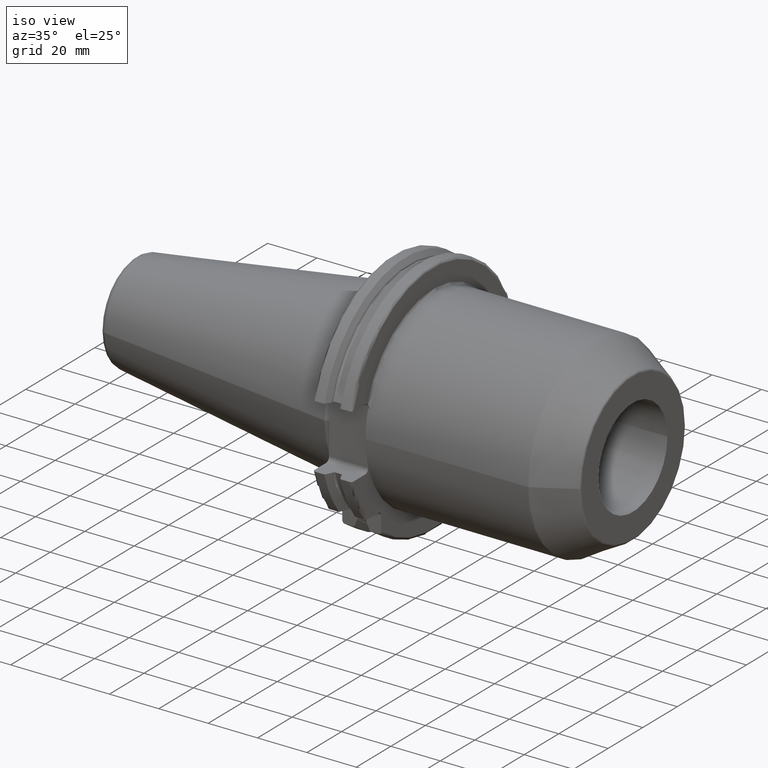
[diagram: clean part render]
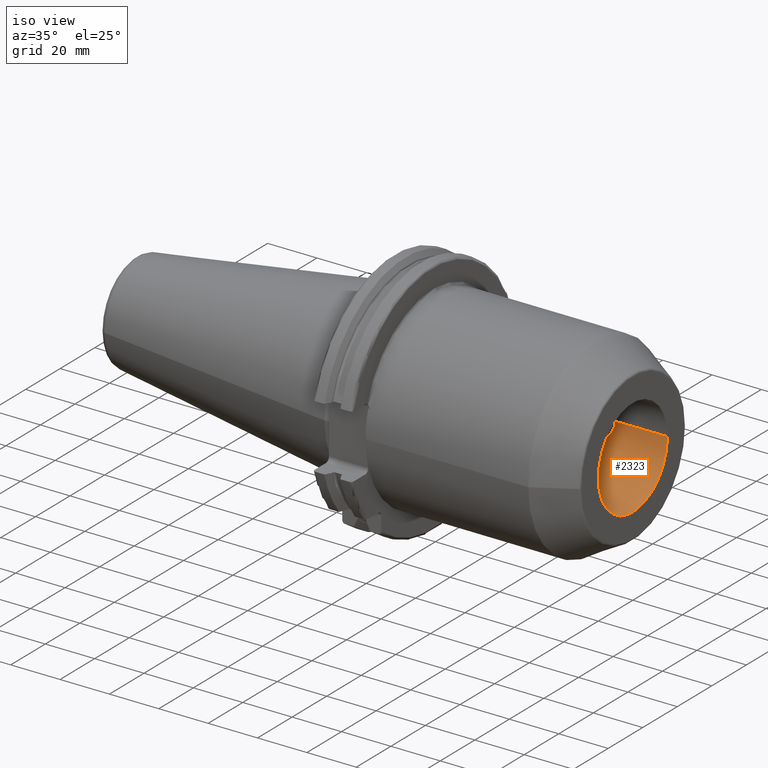
[diagram: same view with one face highlighted and labeled with its STEP entity id]
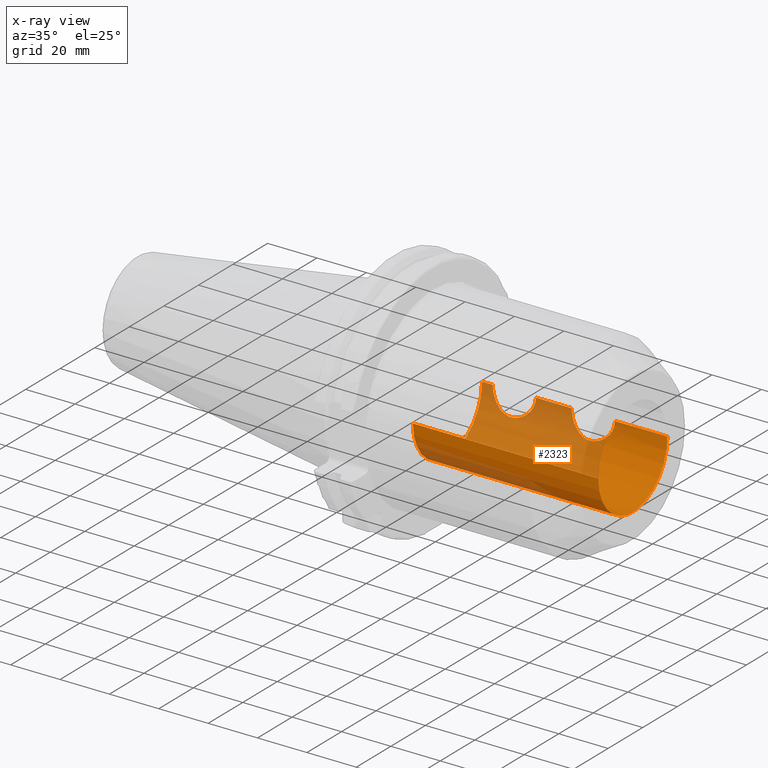
[diagram: x-ray of the same camera — body ghosted, the highlighted face saturated]
A machine part, iso view. The second image highlights one B-rep face of the part: STEP entity #2323.
The next image is the same camera in x-ray: the body ghosted, the highlighted face saturated — about 46% of this face is hidden behind the body in this view.
In plain terms, the highlighted cylindrical surface (partial cylindrical patch) has radius 20 mm, axis along (1, 0, 0).
Its self-contained STEP definition (entity closure, byte-faithful):
#427=CARTESIAN_POINT('',(4.675E1,2.E1,0.E0));
#428=CARTESIAN_POINT('',(4.675E1,2.E1,-4.221815113219E-1));
#429=CARTESIAN_POINT('',(4.668974183808E1,1.997351597905E1,-1.264486825020E0));
#430=CARTESIAN_POINT('',(4.640911381883E1,1.985231393078E1,-2.532693727761E0));
#431=CARTESIAN_POINT('',(4.594098856355E1,1.965730539747E1,-3.752676873421E0));
#432=CARTESIAN_POINT('',(4.528152256770E1,1.939843806638E1,-4.913486967238E0));
#433=CARTESIAN_POINT('',(4.444294002055E1,1.909700523776E1,-5.972419817415E0));
#434=CARTESIAN_POINT('',(4.343749169343E1,1.877919774564E1,-6.899918930217E0));
#435=CARTESIAN_POINT('',(4.232271641238E1,1.848498705845E1,-7.646641068781E0));
#436=CARTESIAN_POINT('',(4.111934025252E1,1.823964579023E1,-8.209758751887E0));
#437=CARTESIAN_POINT('',(3.988771361233E1,1.806891095861E1,-8.575678024833E0));
#438=CARTESIAN_POINT('',(3.862601045370E1,1.798058242086E1,-8.757849501625E0));
#439=CARTESIAN_POINT('',(3.737297962034E1,1.798062249821E1,-8.757766850337E0));
#440=CARTESIAN_POINT('',(3.611145616374E1,1.806899590367E1,-8.575502918762E0));
#441=CARTESIAN_POINT('',(3.487964104451E1,1.823982303661E1,-8.209362893314E0));
#442=CARTESIAN_POINT('',(3.367655713701E1,1.848515425521E1,-7.646254168984E0));
#443=CARTESIAN_POINT('',(3.256139116928E1,1.877952626427E1,-6.899010257766E0));
#444=CARTESIAN_POINT('',(3.155675890303E1,1.909710980604E1,-5.972105203108E0));
#445=CARTESIAN_POINT('',(3.071755755378E1,1.939878030636E1,-4.912159375568E0));
#446=CARTESIAN_POINT('',(3.005868455095E1,1.965744277999E1,-3.751921524590E0));
#447=CARTESIAN_POINT('',(2.959064177600E1,1.985241725797E1,-2.531818652776E0));
#448=CARTESIAN_POINT('',(2.931031023148E1,1.997349416097E1,-1.264585744122E0));
#449=CARTESIAN_POINT('',(2.925E1,2.E1,-4.222505022422E-1));
#450=CARTESIAN_POINT('',(2.925E1,2.E1,0.E0));
#452=DIRECTION('',(-1.E0,0.E0,0.E0));
#453=VECTOR('',#452,1.45E1);
#454=CARTESIAN_POINT('',(6.125E1,2.E1,0.E0));
#455=LINE('',#454,#453);
#456=CARTESIAN_POINT('',(7.875E1,2.E1,0.E0));
#457=CARTESIAN_POINT('',(7.875E1,2.E1,-4.221815113219E-1));
#458=CARTESIAN_POINT('',(7.868974183808E1,1.997351597905E1,-1.264486825020E0));
#459=CARTESIAN_POINT('',(7.840911381883E1,1.985231393078E1,-2.532693727761E0));
#460=CARTESIAN_POINT('',(7.794098856355E1,1.965730539747E1,-3.752676873421E0));
#461=CARTESIAN_POINT('',(7.728152256770E1,1.939843806638E1,-4.913486967238E0));
#462=CARTESIAN_POINT('',(7.644294002055E1,1.909700523776E1,-5.972419817415E0));
#463=CARTESIAN_POINT('',(7.543749169343E1,1.877919774564E1,-6.899918930217E0));
#464=CARTESIAN_POINT('',(7.432271641238E1,1.848498705845E1,-7.646641068781E0));
#465=CARTESIAN_POINT('',(7.311934025252E1,1.823964579023E1,-8.209758751887E0));
#466=CARTESIAN_POINT('',(7.188771361233E1,1.806891095861E1,-8.575678024833E0));
#467=CARTESIAN_POINT('',(7.062601045370E1,1.798058242086E1,-8.757849501625E0));
#468=CARTESIAN_POINT('',(6.937297962034E1,1.798062249821E1,-8.757766850337E0));
#469=CARTESIAN_POINT('',(6.811145616374E1,1.806899590367E1,-8.575502918762E0));
#470=CARTESIAN_POINT('',(6.687964104451E1,1.823982303661E1,-8.209362893314E0));
#471=CARTESIAN_POINT('',(6.567655713701E1,1.848515425521E1,-7.646254168984E0));
#472=CARTESIAN_POINT('',(6.456139116928E1,1.877952626427E1,-6.899010257766E0));
#473=CARTESIAN_POINT('',(6.355675890303E1,1.909710980604E1,-5.972105203108E0));
#474=CARTESIAN_POINT('',(6.271755755378E1,1.939878030636E1,-4.912159375569E0));
#475=CARTESIAN_POINT('',(6.205868455095E1,1.965744277999E1,-3.751921524590E0));
#476=CARTESIAN_POINT('',(6.159064177600E1,1.985241725797E1,-2.531818652776E0));
#477=CARTESIAN_POINT('',(6.131031023148E1,1.997349416097E1,-1.264585744122E0));
#478=CARTESIAN_POINT('',(6.125E1,2.E1,-4.222505022422E-1));
#479=CARTESIAN_POINT('',(6.125E1,2.E1,0.E0));
#481=DIRECTION('',(-1.E0,0.E0,0.E0));
#482=VECTOR('',#481,2.125E1);
#483=CARTESIAN_POINT('',(1.E2,2.E1,0.E0));
#484=LINE('',#483,#482);
#485=DIRECTION('',(-1.E0,0.E0,0.E0));
#486=VECTOR('',#485,7.51E1);
#487=CARTESIAN_POINT('',(1.E2,-2.E1,0.E0));
#488=LINE('',#487,#486);
#489=DIRECTION('',(-1.E0,0.E0,0.E0));
#490=VECTOR('',#489,4.35E0);
#491=CARTESIAN_POINT('',(2.925E1,2.E1,0.E0));
#492=LINE('',#491,#490);
#493=CARTESIAN_POINT('',(2.925E1,2.E1,0.E0));
#516=CARTESIAN_POINT('',(4.675E1,2.E1,0.E0));
#543=CARTESIAN_POINT('',(2.49E1,0.E0,0.E0));
#544=DIRECTION('',(-1.E0,0.E0,0.E0));
#545=DIRECTION('',(0.E0,1.E0,0.E0));
#546=AXIS2_PLACEMENT_3D('',#543,#544,#545);
#558=CARTESIAN_POINT('',(1.E2,0.E0,0.E0));
#559=DIRECTION('',(1.E0,0.E0,0.E0));
#560=DIRECTION('',(0.E0,-1.E0,0.E0));
#561=AXIS2_PLACEMENT_3D('',#558,#559,#560);
#1792=CARTESIAN_POINT('',(2.49E1,2.E1,0.E0));
#1793=CARTESIAN_POINT('',(2.49E1,-2.E1,0.E0));
#1794=VERTEX_POINT('',#1792);
#1795=VERTEX_POINT('',#1793);
#1796=CARTESIAN_POINT('',(1.E2,-2.E1,0.E0));
#1797=VERTEX_POINT('',#1796);
#1798=CARTESIAN_POINT('',(7.875E1,2.E1,0.E0));
#1800=VERTEX_POINT('',#1798);
#1802=CARTESIAN_POINT('',(6.125E1,2.E1,0.E0));
#1804=VERTEX_POINT('',#1802);
#1806=CARTESIAN_POINT('',(1.E2,2.E1,0.E0));
#1807=VERTEX_POINT('',#1806);
#1824=VERTEX_POINT('',#493);
#1825=VERTEX_POINT('',#516);
#2301=CARTESIAN_POINT('',(2.1145E1,0.E0,0.E0));
#2302=DIRECTION('',(1.E0,0.E0,0.E0));
#2303=DIRECTION('',(0.E0,-1.E0,0.E0));
#2304=AXIS2_PLACEMENT_3D('',#2301,#2302,#2303);
#2305=CYLINDRICAL_SURFACE('',#2304,2.E1);
#2306=ORIENTED_EDGE('',*,*,#2295,.F.);
#2308=ORIENTED_EDGE('',*,*,#2307,.F.);
#2310=ORIENTED_EDGE('',*,*,#2309,.F.);
#2312=ORIENTED_EDGE('',*,*,#2311,.F.);
#2314=ORIENTED_EDGE('',*,*,#2313,.F.);
#2316=ORIENTED_EDGE('',*,*,#2315,.T.);
#2318=ORIENTED_EDGE('',*,*,#2317,.F.);
#2320=ORIENTED_EDGE('',*,*,#2319,.F.);
#2321=EDGE_LOOP('',(#2306,#2308,#2310,#2312,#2314,#2316,#2318,#2320));
#2322=FACE_OUTER_BOUND('',#2321,.F.);
#2323=ADVANCED_FACE('',(#2322),#2305,.F.);
#451=B_SPLINE_CURVE_WITH_KNOTS('',3,(#427,#428,#429,#430,#431,#432,#433,#434,
#435,#436,#437,#438,#439,#440,#441,#442,#443,#444,#445,#446,#447,#448,#449,
#450),.UNSPECIFIED.,.F.,.F.,(4,1,1,1,1,1,1,1,1,1,1,1,1,1,1,1,1,1,1,1,1,4),(0.E0,
4.761904761905E-2,9.523809523810E-2,1.428571428571E-1,1.904761904762E-1,
2.380952380952E-1,2.857142857143E-1,3.333333333333E-1,3.809523809524E-1,
4.285714285714E-1,4.761904761905E-1,5.238095238095E-1,5.714285714286E-1,
6.190476190476E-1,6.666666666667E-1,7.142857142857E-1,7.619047619048E-1,
8.095238095238E-1,8.571428571429E-1,9.047619047619E-1,9.523809523810E-1,1.E0),
.UNSPECIFIED.);
#480=B_SPLINE_CURVE_WITH_KNOTS('',3,(#456,#457,#458,#459,#460,#461,#462,#463,
#464,#465,#466,#467,#468,#469,#470,#471,#472,#473,#474,#475,#476,#477,#478,
#479),.UNSPECIFIED.,.F.,.F.,(4,1,1,1,1,1,1,1,1,1,1,1,1,1,1,1,1,1,1,1,1,4),(0.E0,
4.761904761905E-2,9.523809523810E-2,1.428571428571E-1,1.904761904762E-1,
2.380952380952E-1,2.857142857143E-1,3.333333333333E-1,3.809523809524E-1,
4.285714285714E-1,4.761904761905E-1,5.238095238095E-1,5.714285714286E-1,
6.190476190476E-1,6.666666666667E-1,7.142857142857E-1,7.619047619048E-1,
8.095238095238E-1,8.571428571429E-1,9.047619047619E-1,9.523809523810E-1,1.E0),
.UNSPECIFIED.);
#547=CIRCLE('',#546,2.E1);
#562=CIRCLE('',#561,2.E1);
#2295=EDGE_CURVE('',#1825,#1824,#451,.T.);
#2307=EDGE_CURVE('',#1804,#1825,#455,.T.);
#2309=EDGE_CURVE('',#1800,#1804,#480,.T.);
#2311=EDGE_CURVE('',#1807,#1800,#484,.T.);
#2313=EDGE_CURVE('',#1797,#1807,#562,.T.);
#2315=EDGE_CURVE('',#1797,#1795,#488,.T.);
#2317=EDGE_CURVE('',#1794,#1795,#547,.T.);
#2319=EDGE_CURVE('',#1824,#1794,#492,.T.);